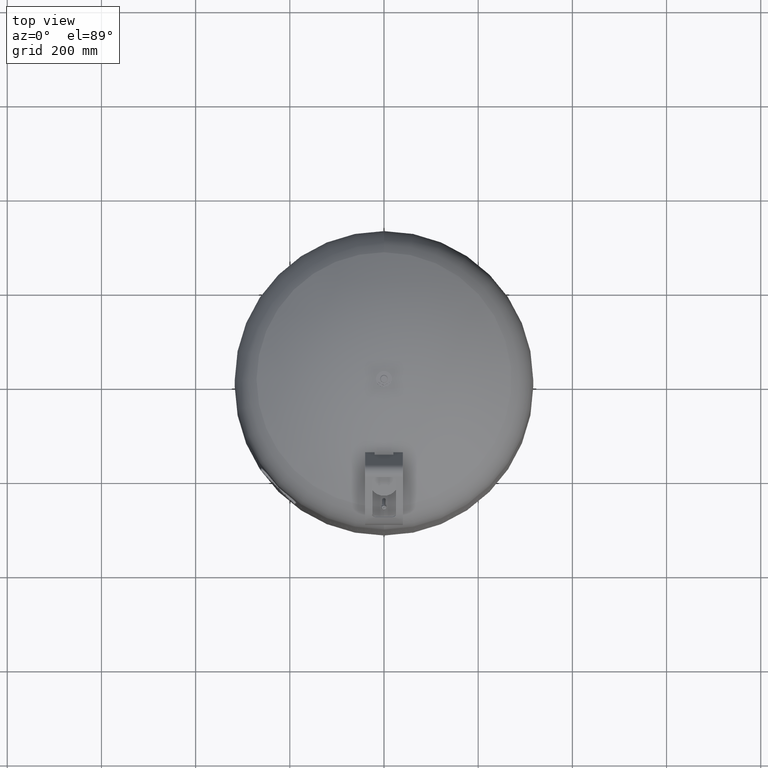
[diagram: clean part render]
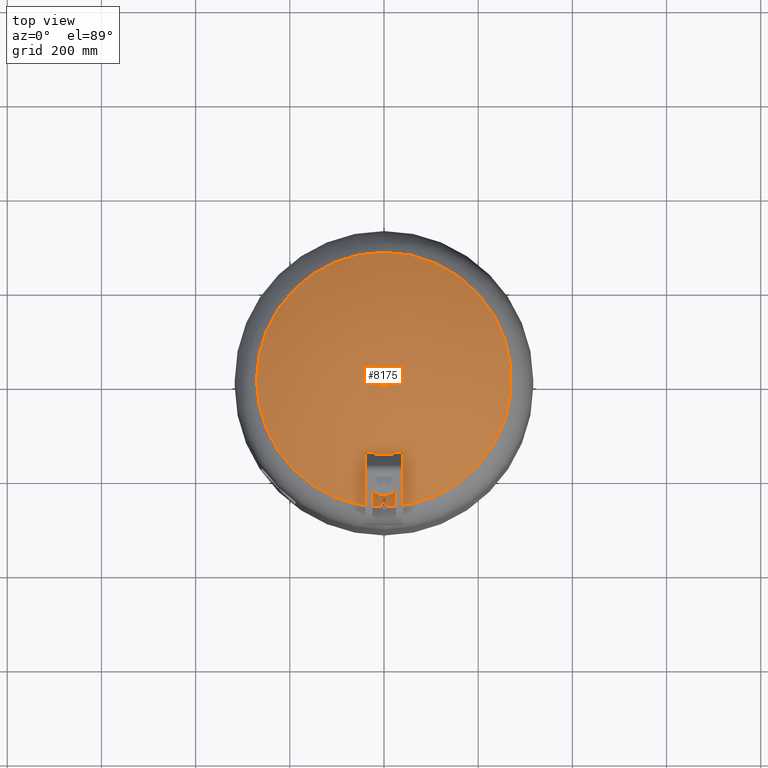
[diagram: same view with one face highlighted and labeled with its STEP entity id]
A machine part, top view. The second image highlights one B-rep face of the part: STEP entity #8175.
In plain terms, the highlighted spherical surface has radius 509 mm.
Its self-contained STEP definition (entity closure, byte-faithful):
#8114=CARTESIAN_POINT('',(8.065826E-015,270.639024390243830,1160.086439681297600));
#8115=VERTEX_POINT('',#8114);
#8131=CARTESIAN_POINT('',(-2.507680E-014,-270.639024390243830,1160.086439681297600));
#8132=VERTEX_POINT('',#8131);
#8140=CARTESIAN_POINT('',(-270.639024390243830,2.385415E-014,1160.086439681297600));
#8141=VERTEX_POINT('',#8140);
#8142=CARTESIAN_POINT('',(-7.495146E-015,2.385415E-014,1160.086439681297600));
#8143=DIRECTION('',(0.0,0.0,-1.0));
#8144=DIRECTION('',(-1.0,0.0,0.0));
#8145=AXIS2_PLACEMENT_3D('',#8142,#8143,#8144);
#8146=CIRCLE('',#8145,270.639024390243830);
#8147=EDGE_CURVE('',#8132,#8141,#8146,.T.);
#8149=CARTESIAN_POINT('',(-7.495146E-015,2.385415E-014,1160.086439681297600));
#8150=DIRECTION('',(0.0,0.0,-1.0));
#8151=DIRECTION('',(-1.0,0.0,0.0));
#8152=AXIS2_PLACEMENT_3D('',#8149,#8150,#8151);
#8153=CIRCLE('',#8152,270.639024390243830);
#8154=EDGE_CURVE('',#8141,#8115,#8153,.T.);
#8159=CARTESIAN_POINT('',(-1.005746E-013,1.558363E-013,729.0));
#8160=DIRECTION('',(0.0,1.0,0.0));
#8161=DIRECTION('',(1.0,0.0,0.0));
#8162=AXIS2_PLACEMENT_3D('',#8159,#8160,#8161);
#8163=SPHERICAL_SURFACE('',#8162,509.000000000000060);
#8164=ORIENTED_EDGE('',*,*,#8154,.F.);
#8165=ORIENTED_EDGE('',*,*,#8147,.F.);
#8166=CARTESIAN_POINT('',(-7.495146E-015,2.385415E-014,1160.086439681297600));
#8167=DIRECTION('',(0.0,0.0,-1.0));
#8168=DIRECTION('',(-1.0,0.0,0.0));
#8169=AXIS2_PLACEMENT_3D('',#8166,#8167,#8168);
#8170=CIRCLE('',#8169,270.639024390243830);
#8171=EDGE_CURVE('',#8115,#8132,#8170,.T.);
#8172=ORIENTED_EDGE('',*,*,#8171,.F.);
#8173=EDGE_LOOP('',(#8164,#8165,#8172));
#8174=FACE_OUTER_BOUND('',#8173,.T.);
#8175=ADVANCED_FACE('',(#8174),#8163,.T.);